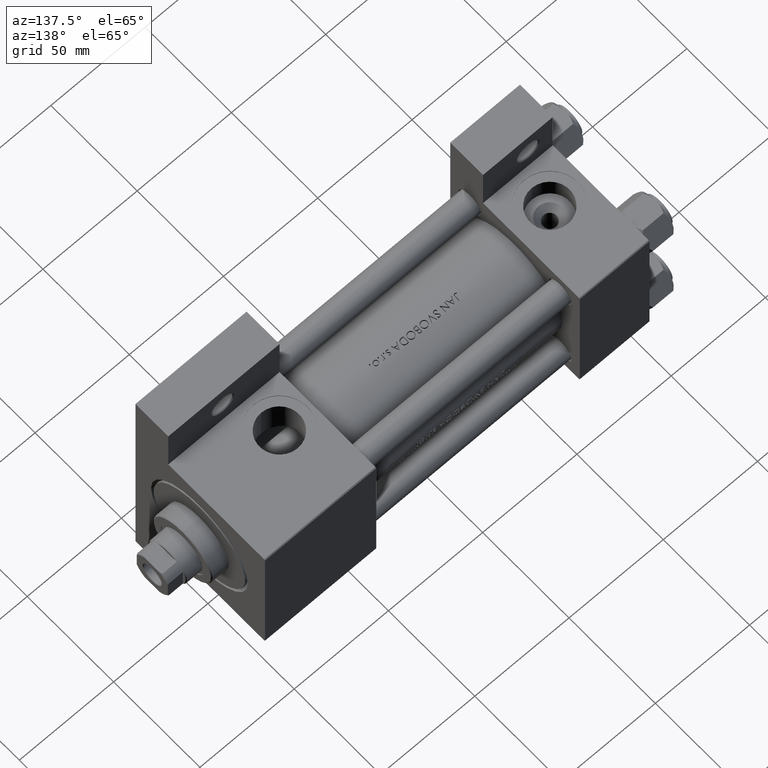
[diagram: clean part render]
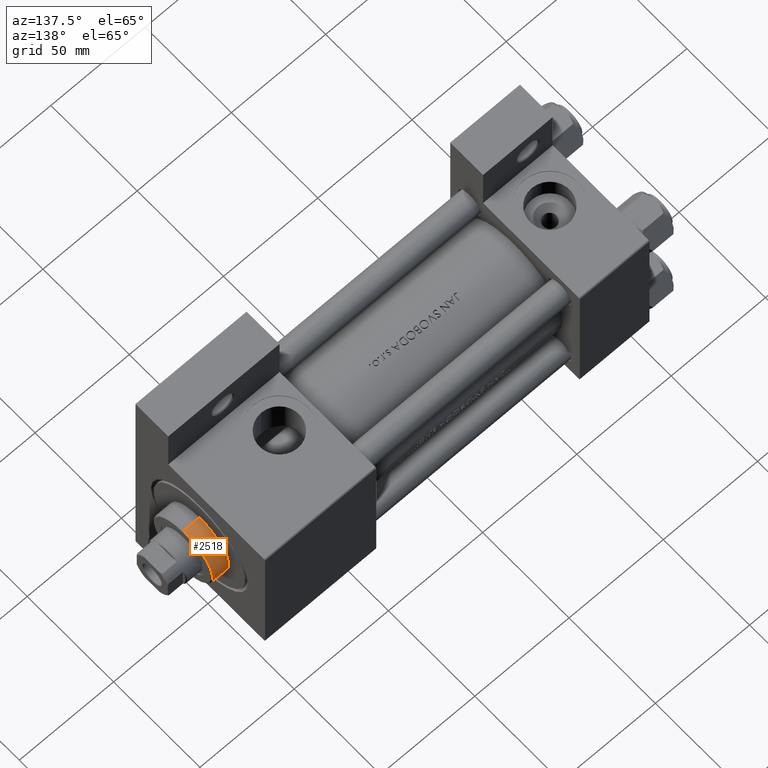
[diagram: same view with one face highlighted and labeled with its STEP entity id]
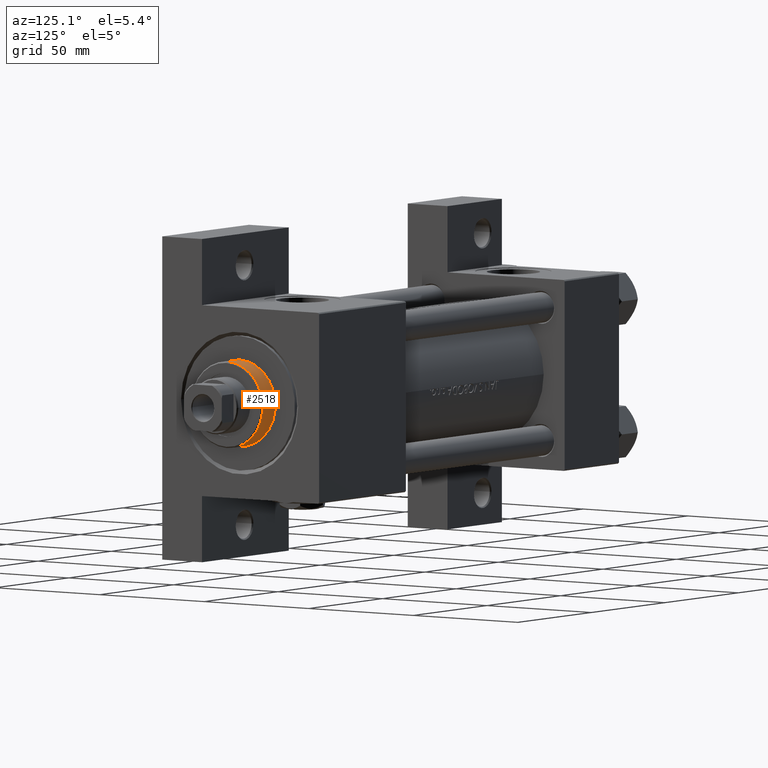
[diagram: same view with one face highlighted and labeled with its STEP entity id]
A machine part, auxiliary view. The second image highlights one B-rep face of the part: STEP entity #2518.
A second angle (auxiliary view) of the same face is appended — the face is thin or edge-on in the first view.
In plain terms, the highlighted cylindrical surface (partial cylindrical patch) has radius 17 mm, axis along (-1, -0, 0).
Its self-contained STEP definition (entity closure, byte-faithful):
#165 = VERTEX_POINT ( 'NONE', #28658 ) ;
#2518 = ADVANCED_FACE ( 'NONE', ( #20128 ), #12165, .T. ) ;
#4572 = EDGE_CURVE ( 'NONE', #165, #42050, #33630, .T. ) ;
#11112 = EDGE_LOOP ( 'NONE', ( #38616, #49280, #20264, #44632 ) ) ;
#11904 = CARTESIAN_POINT ( 'NONE',  ( -17.00000000000000000, 0.000000000000000000, 37.69999999999999574 ) ) ;
#12165 = CYLINDRICAL_SURFACE ( 'NONE', #32042, 17.00000000000000000 ) ;
#12538 = VERTEX_POINT ( 'NONE', #28036 ) ;
#13257 = CARTESIAN_POINT ( 'NONE',  ( -17.00000000000000000, 0.000000000000000000, 28.69999999999999929 ) ) ;
#17163 = DIRECTION ( 'NONE',  ( -0.000000000000000000, -0.000000000000000000, -1.000000000000000000 ) ) ;
#18343 = AXIS2_PLACEMENT_3D ( 'NONE', #27298, #49248, #34786 ) ;
#19939 = CIRCLE ( 'NONE', #18343, 17.00000000000000000 ) ;
#20101 = VECTOR ( 'NONE', #35037, 1000.000000000000000 ) ;
#20128 = FACE_OUTER_BOUND ( 'NONE', #11112, .T. ) ;
#20264 = ORIENTED_EDGE ( 'NONE', *, *, #43028, .T. ) ;
#20282 = EDGE_CURVE ( 'NONE', #165, #43798, #23587, .T. ) ;
#20962 = VECTOR ( 'NONE', #17163, 1000.000000000000000 ) ;
#21471 = EDGE_CURVE ( 'NONE', #42050, #12538, #31604, .T. ) ;
#23587 = LINE ( 'NONE', #11904, #20101 ) ;
#23852 = CARTESIAN_POINT ( 'NONE',  ( 0.000000000000000000, 0.000000000000000000, 37.69999999999999574 ) ) ;
#27298 = CARTESIAN_POINT ( 'NONE',  ( 0.000000000000000000, 0.000000000000000000, 28.69999999999999929 ) ) ;
#27323 = DIRECTION ( 'NONE',  ( -0.000000000000000000, -0.000000000000000000, -1.000000000000000000 ) ) ;
#28036 = CARTESIAN_POINT ( 'NONE',  ( 17.00000000000000000, 2.081899558550500280E-15, 28.69999999999999929 ) ) ;
#28658 = CARTESIAN_POINT ( 'NONE',  ( -17.00000000000000000, 0.000000000000000000, 37.19999999999999574 ) ) ;
#31604 = LINE ( 'NONE', #42781, #20962 ) ;
#32042 = AXIS2_PLACEMENT_3D ( 'NONE', #23852, #27323, #42256 ) ;
#33630 = CIRCLE ( 'NONE', #39999, 17.00000000000000000 ) ;
#34786 = DIRECTION ( 'NONE',  ( 1.000000000000000000, 0.000000000000000000, 0.000000000000000000 ) ) ;
#35037 = DIRECTION ( 'NONE',  ( -0.000000000000000000, -0.000000000000000000, -1.000000000000000000 ) ) ;
#38616 = ORIENTED_EDGE ( 'NONE', *, *, #4572, .T. ) ;
#39999 = AXIS2_PLACEMENT_3D ( 'NONE', #49189, #41937, #41693 ) ;
#41015 = CARTESIAN_POINT ( 'NONE',  ( 17.00000000000000000, 2.081899558550500280E-15, 37.19999999999999574 ) ) ;
#41693 = DIRECTION ( 'NONE',  ( 1.000000000000000000, 0.000000000000000000, 0.000000000000000000 ) ) ;
#41937 = DIRECTION ( 'NONE',  ( 0.000000000000000000, 0.000000000000000000, -1.000000000000000000 ) ) ;
#42050 = VERTEX_POINT ( 'NONE', #41015 ) ;
#42256 = DIRECTION ( 'NONE',  ( -1.000000000000000000, 0.000000000000000000, 0.000000000000000000 ) ) ;
#42781 = CARTESIAN_POINT ( 'NONE',  ( 17.00000000000000000, 2.081899558550500280E-15, 37.69999999999999574 ) ) ;
#43028 = EDGE_CURVE ( 'NONE', #12538, #43798, #19939, .T. ) ;
#43798 = VERTEX_POINT ( 'NONE', #13257 ) ;
#44632 = ORIENTED_EDGE ( 'NONE', *, *, #20282, .F. ) ;
#49189 = CARTESIAN_POINT ( 'NONE',  ( 0.000000000000000000, 0.000000000000000000, 37.19999999999999574 ) ) ;
#49248 = DIRECTION ( 'NONE',  ( 0.000000000000000000, 0.000000000000000000, 1.000000000000000000 ) ) ;
#49280 = ORIENTED_EDGE ( 'NONE', *, *, #21471, .T. ) ;